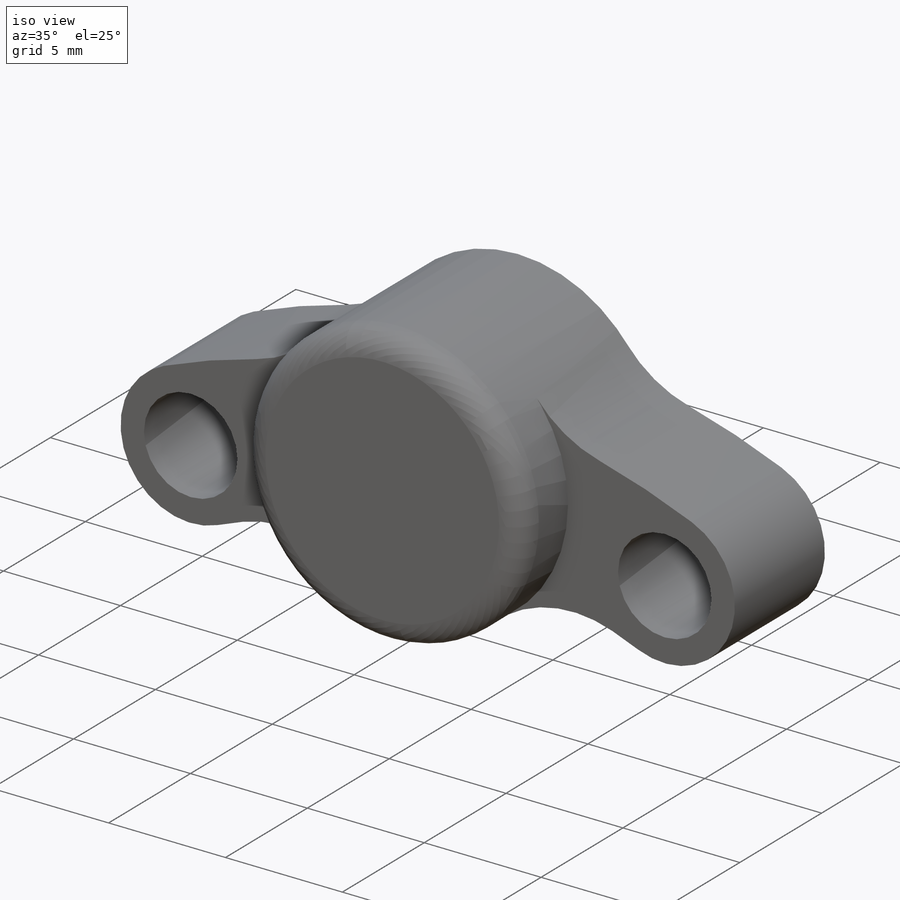
[diagram: iso view]
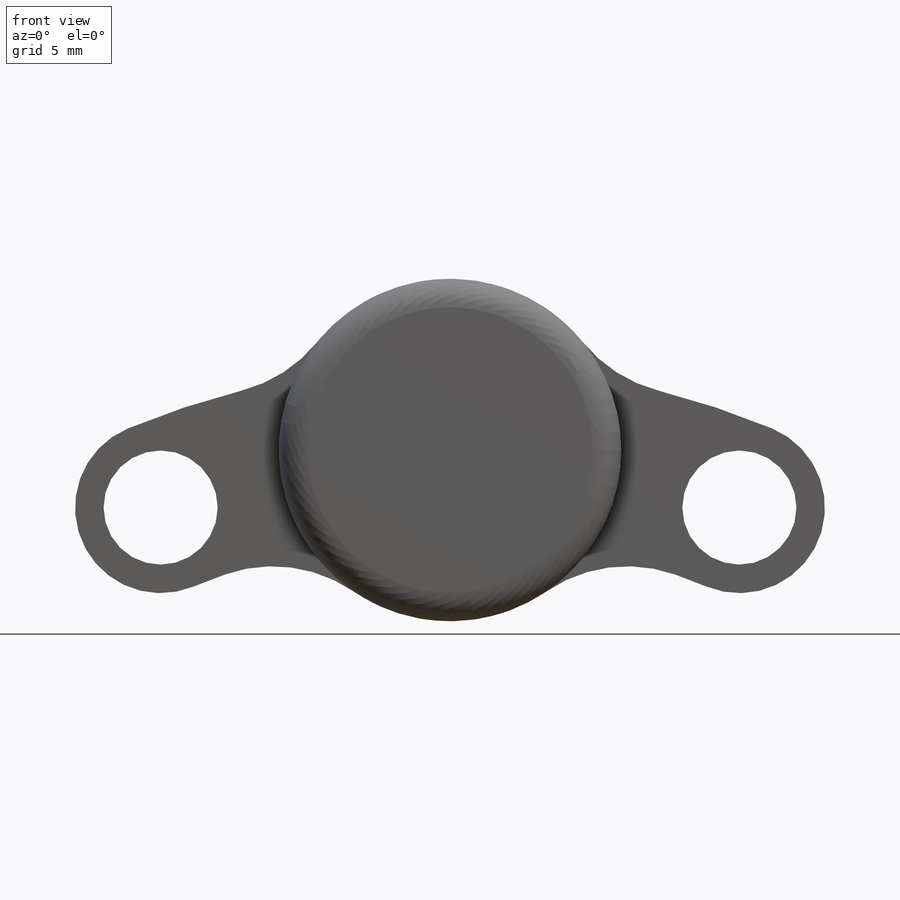
[diagram: front view]
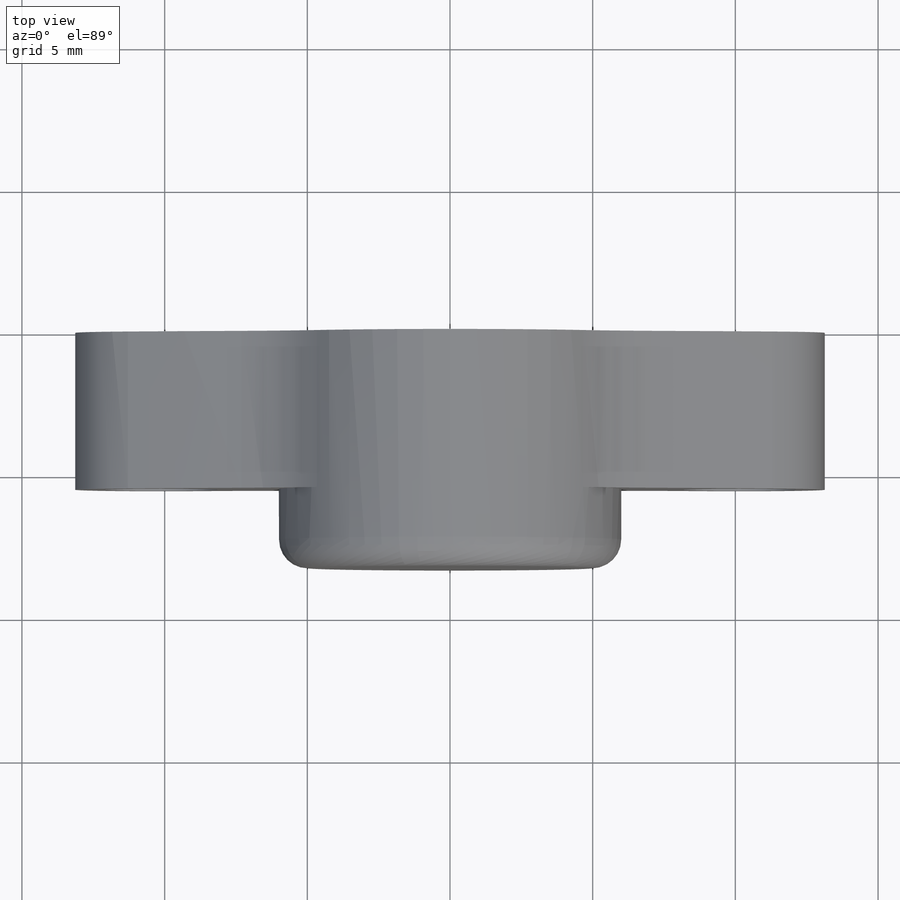
[diagram: top view]
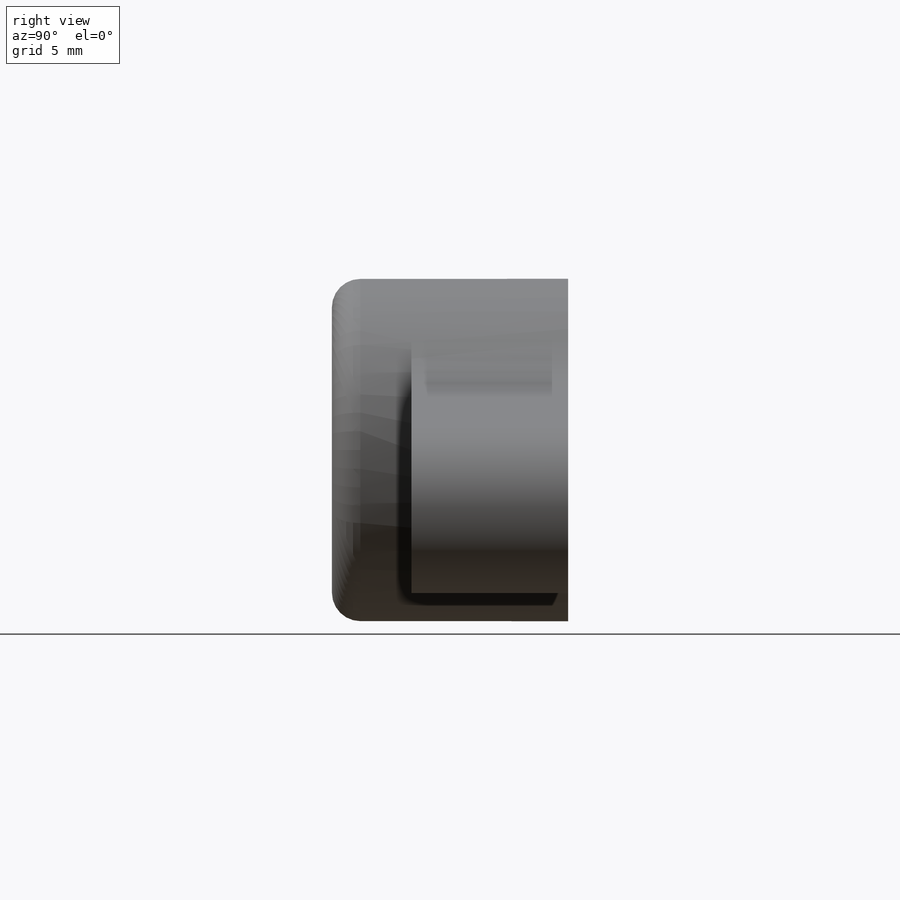
[diagram: right view]
SOLIDWORKS PART (.sldprt)
format: sldprt  version: not decoded by parser v0  size: 828,416 bytes
history: native  units: mm
features: sketch x9, extrude x6, fillet x4, material x1 + 1 further entry (+18 scaffold rows collapsed; 3 parser-record rows omitted)
feature tree (42):
  scaffold x18  (default folders/planes/origin — collapsed)
  material  "Material <not specified>"
  sketch  "Magnet_Placement-Perm_Magnet_Assembly_Reference"  dims[c1.D1=70.0mm c1.D2=13.0mm c2.D1=8.5mm c2.D3=8.0]
  sketch  "Magnet_vessel_mtg_pts-Perm_Magnet_Assembly_Reference"  dims[c1.D1=5.6mm c1.D4=4.0mm c1.D2=15.0mm c2.D1=22.5deg c2.D2=45.0deg c2.D3=26.5mm c2.D5=26.5mm c2.D7=26.5mm c2.D6=8.0]
  sketch  "Magnet_vessel_outline-Perm_Magnet_Assembly_Reference"  dims[c1.D1=28.5mm c1.D2=9.525mm c2.D1=~27.077748mm c2.D2=0.25mm c3.D1=6.0mm c3.D2=0.0mm]
  "Perm_Magnet_Assembly_Reference"
  parser-record x3  (decoder bookkeeping rows leaked as tree rows — omitted from the tree; the rows remain in map.json)
  sketch  "Sketch17"  dims[D1=10.25mm]
  extrude  "Boss-Extrude3"  Depth=2mm
  sketch  "Sketch18"
  extrude  "Boss-Extrude4"  Depth=4.85mm
  sketch  "Sketch19"
  extrude  "Boss-Extrude5"  Depth=1.5mm
  fillet  "Fillet1"  Radius=5mm
  fillet  "Fillet2"  Radius=1mm
  sketch  "Sketch20"  dims[D1=10.25mm]
  extrude  "Boss-Extrude6"  Depth=5.5mm
  sketch  "Sketch21"
  extrude  "Boss-Extrude7"  Depth=1.28mm
  sketch  "Sketch22"
  extrude  "Boss-Extrude8"  Depth=1.5mm
  fillet  "Fillet3"  Radius=5mm
  fillet  "Fillet4"  Radius=1mm
decode coverage: 15 of 19 modeling features carry decoded parameters; 1 rows unclassified (native names shown)
note: ~ marks probable driven/reference dimensions
note: suppression state not decoded; provenance and decode notes live in map.json
